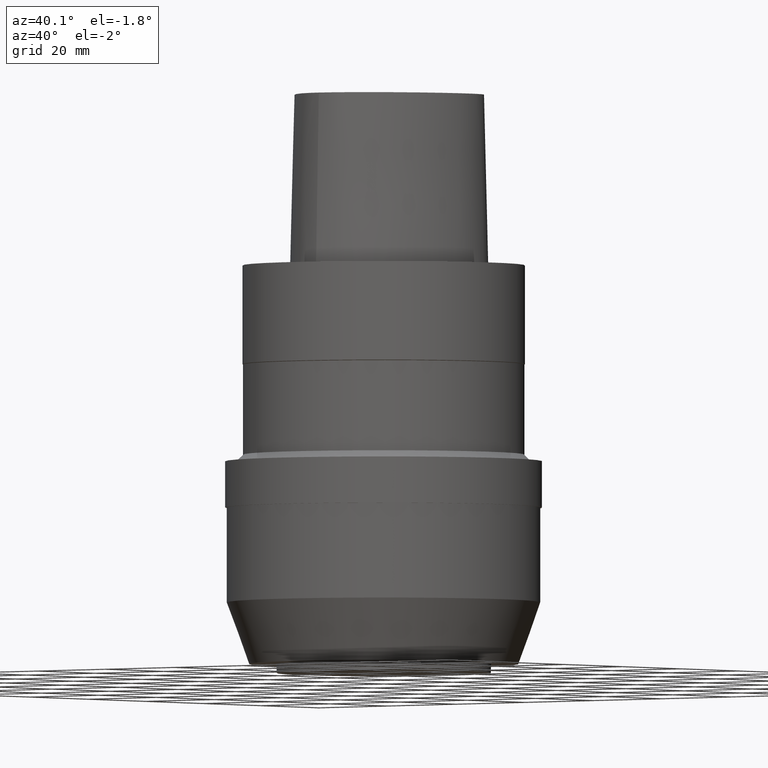
[diagram: clean part render]
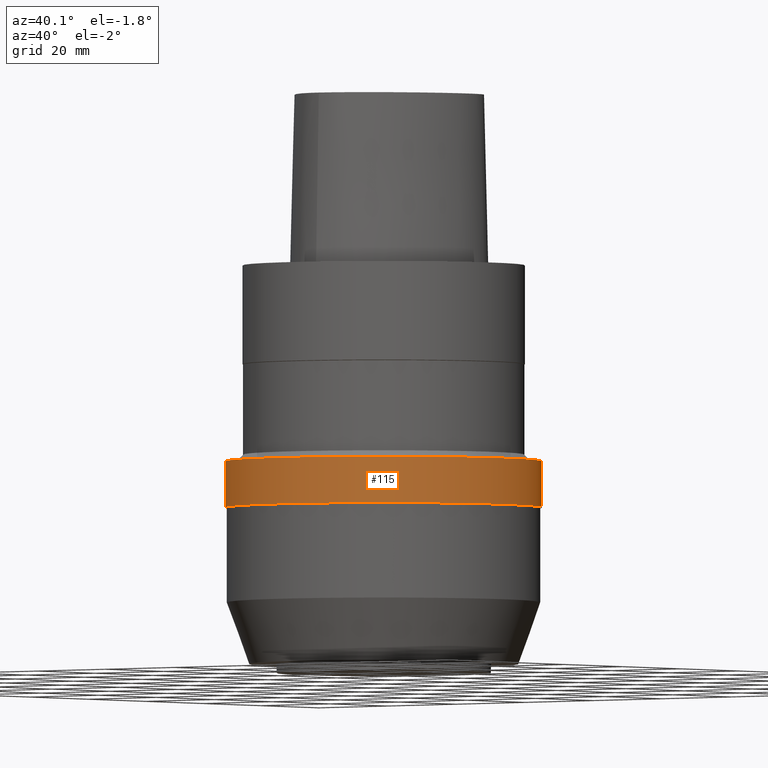
[diagram: same view with one face highlighted and labeled with its STEP entity id]
A machine part, auxiliary view. The second image highlights one B-rep face of the part: STEP entity #115.
In plain terms, the highlighted cylindrical surface (bore or boss wall) has radius 35.35 mm, axis along (0, 0, -1).
Its self-contained STEP definition (entity closure, byte-faithful):
#68=EDGE_CURVE('Unnamed[1]',#182,#182,#183,.T.);
#96=EDGE_CURVE('Unnamed[1]',#223,#223,#224,.T.);
#115=ADVANCED_FACE('Unnamed[1]',(#250,#251),#252,.T.);
#182=VERTEX_POINT('',#331);
#183=CIRCLE('',#332,35.3500000000001);
#223=VERTEX_POINT('',#474);
#224=CIRCLE('',#475,35.3500000000001);
#250=FACE_BOUND('',#590,.T.);
#251=FACE_BOUND('',#591,.T.);
#252=CYLINDRICAL_SURFACE('',#592,35.3500000000001);
#331=CARTESIAN_POINT('',(2.67585325613694E-015,35.3500000000001,-43.6999999999996));
#332=AXIS2_PLACEMENT_3D('',#711,#712,#713);
#474=CARTESIAN_POINT('',(3.30654635769783E-015,35.3500000000001,-53.9999999999996));
#475=AXIS2_PLACEMENT_3D('',#744,#745,#746);
#590=EDGE_LOOP('',(#775));
#591=EDGE_LOOP('',(#776));
#592=AXIS2_PLACEMENT_3D('',#777,#778,#779);
#711=CARTESIAN_POINT('',(2.67585325613694E-015,5.35170651227388E-015,-43.6999999999996));
#712=DIRECTION('',(6.12323399573677E-017,1.22464679914735E-016,-1.0));
#713=DIRECTION('',(-1.23259516440783E-032,1.0,1.22464679914735E-016));
#744=CARTESIAN_POINT('',(3.30654635769783E-015,6.61309271539566E-015,-53.9999999999996));
#745=DIRECTION('',(6.12323399573677E-017,1.22464679914735E-016,-1.0));
#746=DIRECTION('',(-1.23259516440783E-032,1.0,1.22464679914735E-016));
#775=ORIENTED_EDGE('',*,*,#96,.F.);
#776=ORIENTED_EDGE('',*,*,#68,.T.);
#777=CARTESIAN_POINT('',(2.99119980691739E-015,5.98239961383477E-015,-48.8499999999996));
#778=DIRECTION('',(6.12323399573676E-017,1.22464679914735E-016,-1.0));
#779=DIRECTION('',(-1.23259516440783E-032,1.0,1.22464679914735E-016));